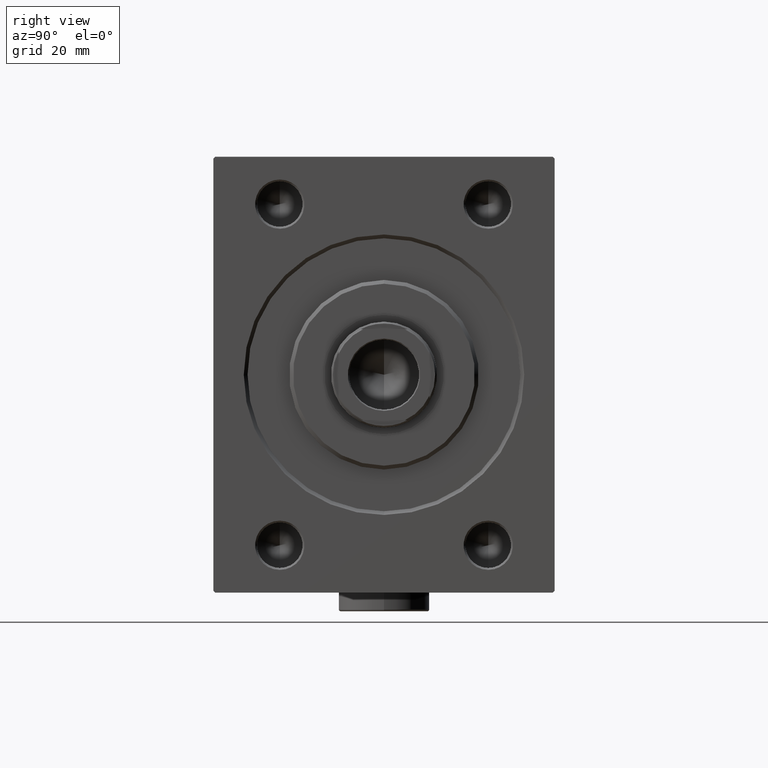
[diagram: clean part render]
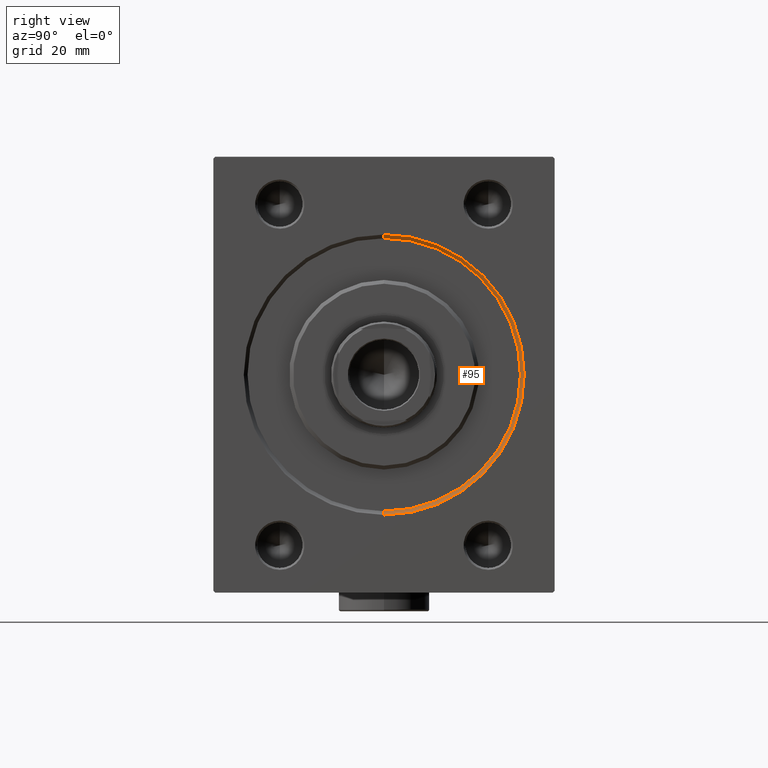
[diagram: same view with one face highlighted and labeled with its STEP entity id]
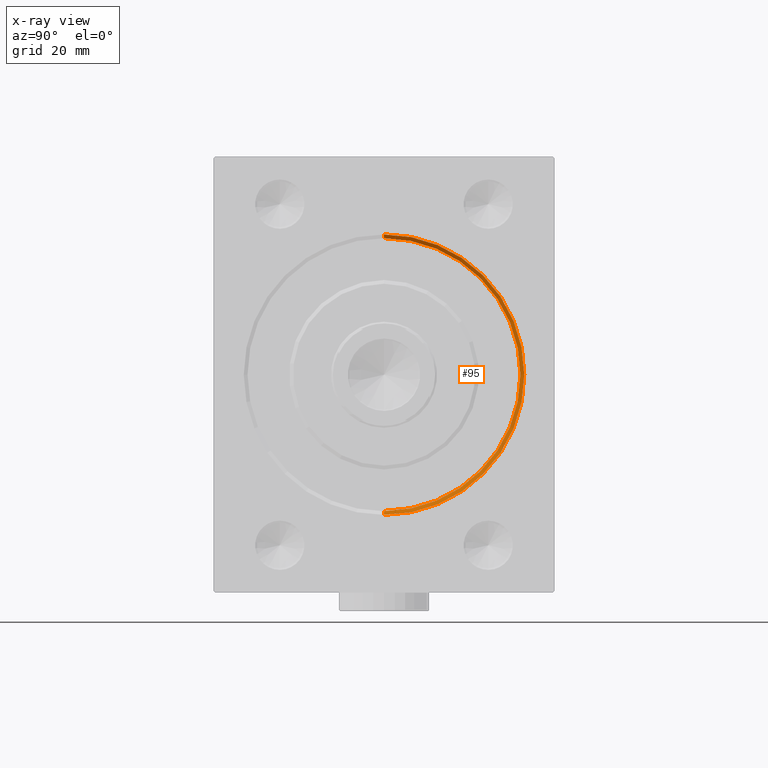
[diagram: x-ray of the same camera — body ghosted, the highlighted face saturated]
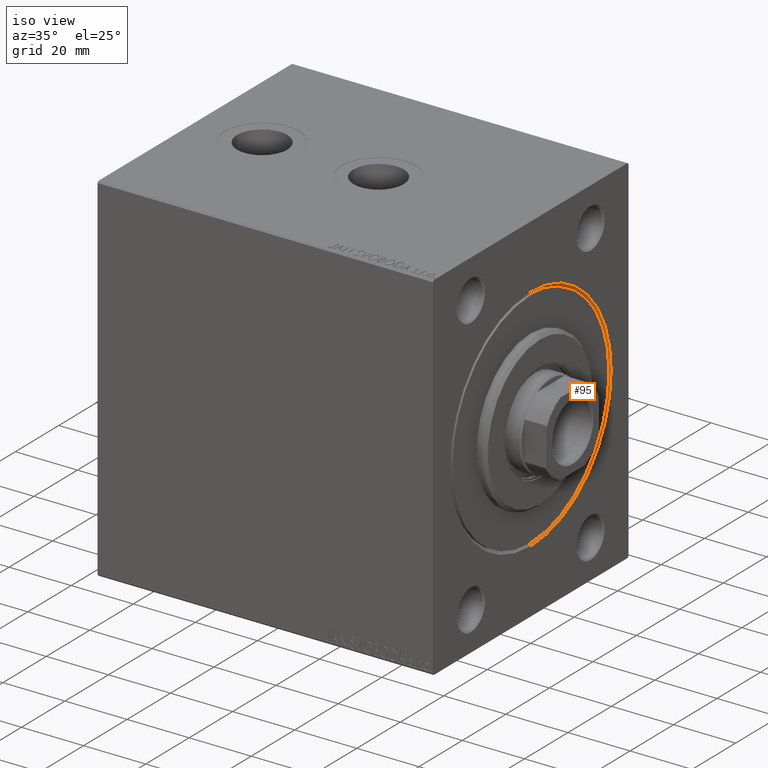
[diagram: same view with one face highlighted and labeled with its STEP entity id]
A machine part, right view. The second image highlights one B-rep face of the part: STEP entity #95.
The next image is the same camera in x-ray: the body ghosted, the highlighted face saturated — about 0% of this face is hidden behind the body in this view.
A second angle (iso view) of the same face is appended — the face is thin or edge-on in the first view.
In plain terms, the highlighted conical surface has half-angle 45 deg.
Its self-contained STEP definition (entity closure, byte-faithful):
#95 = ADVANCED_FACE ( 'NONE', ( #3390 ), #41350, .F. ) ;
#212 = DIRECTION ( 'NONE',  ( -1.000000000000000000, 0.000000000000000000, 0.000000000000000000 ) ) ;
#425 = VERTEX_POINT ( 'NONE', #31182 ) ;
#499 = ORIENTED_EDGE ( 'NONE', *, *, #33361, .F. ) ;
#3158 = DIRECTION ( 'NONE',  ( -1.000000000000000000, 0.000000000000000000, 0.000000000000000000 ) ) ;
#3390 = FACE_OUTER_BOUND ( 'NONE', #18314, .T. ) ;
#4227 = CIRCLE ( 'NONE', #43095, 37.00000000000000711 ) ;
#5080 = VECTOR ( 'NONE', #23161, 999.9999999999998863 ) ;
#5244 = ORIENTED_EDGE ( 'NONE', *, *, #22509, .F. ) ;
#6885 = VERTEX_POINT ( 'NONE', #19783 ) ;
#7129 = CARTESIAN_POINT ( 'NONE',  ( 0.9999999999999940048, 0.000000000000000000, 0.000000000000000000 ) ) ;
#8034 = VERTEX_POINT ( 'NONE', #25127 ) ;
#9343 = EDGE_CURVE ( 'NONE', #8034, #46122, #4227, .T. ) ;
#10747 = AXIS2_PLACEMENT_3D ( 'NONE', #7129, #3158, #24646 ) ;
#14487 = DIRECTION ( 'NONE',  ( 0.000000000000000000, 0.000000000000000000, -1.000000000000000000 ) ) ;
#15534 = VECTOR ( 'NONE', #45755, 999.9999999999998863 ) ;
#15664 = EDGE_CURVE ( 'NONE', #425, #46122, #24910, .T. ) ;
#17691 = ORIENTED_EDGE ( 'NONE', *, *, #9343, .F. ) ;
#18314 = EDGE_LOOP ( 'NONE', ( #5244, #499, #26593, #17691 ) ) ;
#19783 = CARTESIAN_POINT ( 'NONE',  ( 0.9999999999999940048, 4.408728476930470856E-15, -36.00000000000000000 ) ) ;
#20229 = CARTESIAN_POINT ( 'NONE',  ( 0.000000000000000000, 0.000000000000000000, 37.00000000000000711 ) ) ;
#22509 = EDGE_CURVE ( 'NONE', #6885, #8034, #44467, .T. ) ;
#23161 = DIRECTION ( 'NONE',  ( -0.7071067811865425767, 8.659560562354994488E-17, -0.7071067811865525687 ) ) ;
#23955 = CIRCLE ( 'NONE', #25423, 36.00000000000000000 ) ;
#24646 = DIRECTION ( 'NONE',  ( 0.000000000000000000, 0.000000000000000000, 1.000000000000000000 ) ) ;
#24910 = LINE ( 'NONE', #39204, #15534 ) ;
#25127 = CARTESIAN_POINT ( 'NONE',  ( 0.000000000000000000, 4.531193156845207581E-15, -37.00000000000000711 ) ) ;
#25423 = AXIS2_PLACEMENT_3D ( 'NONE', #31350, #212, #14487 ) ;
#26593 = ORIENTED_EDGE ( 'NONE', *, *, #15664, .T. ) ;
#27153 = CARTESIAN_POINT ( 'NONE',  ( 0.9999999999999940048, 4.408728476930470856E-15, -36.00000000000000000 ) ) ;
#31182 = CARTESIAN_POINT ( 'NONE',  ( 0.9999999999999940048, 0.000000000000000000, 36.00000000000000000 ) ) ;
#31350 = CARTESIAN_POINT ( 'NONE',  ( 0.9999999999999940048, 0.000000000000000000, 0.000000000000000000 ) ) ;
#33361 = EDGE_CURVE ( 'NONE', #425, #6885, #23955, .T. ) ;
#35120 = DIRECTION ( 'NONE',  ( 1.000000000000000000, 0.000000000000000000, 0.000000000000000000 ) ) ;
#38858 = DIRECTION ( 'NONE',  ( 0.000000000000000000, 0.000000000000000000, -1.000000000000000000 ) ) ;
#39204 = CARTESIAN_POINT ( 'NONE',  ( 0.9999999999999940048, 0.000000000000000000, 36.00000000000000000 ) ) ;
#41350 = CONICAL_SURFACE ( 'NONE', #10747, 36.00000000000000000, 0.7853981633974552734 ) ;
#42590 = CARTESIAN_POINT ( 'NONE',  ( 0.000000000000000000, 0.000000000000000000, 0.000000000000000000 ) ) ;
#43095 = AXIS2_PLACEMENT_3D ( 'NONE', #42590, #35120, #38858 ) ;
#44467 = LINE ( 'NONE', #27153, #5080 ) ;
#45755 = DIRECTION ( 'NONE',  ( -0.7071067811865425767, 0.000000000000000000, 0.7071067811865525687 ) ) ;
#46122 = VERTEX_POINT ( 'NONE', #20229 ) ;